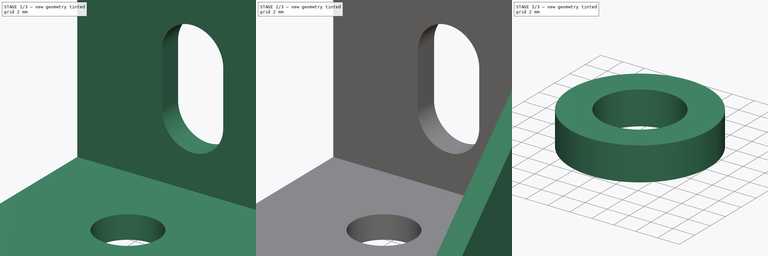
[diagram: build sequence overview — one tinted view per stage of 3, left to right]
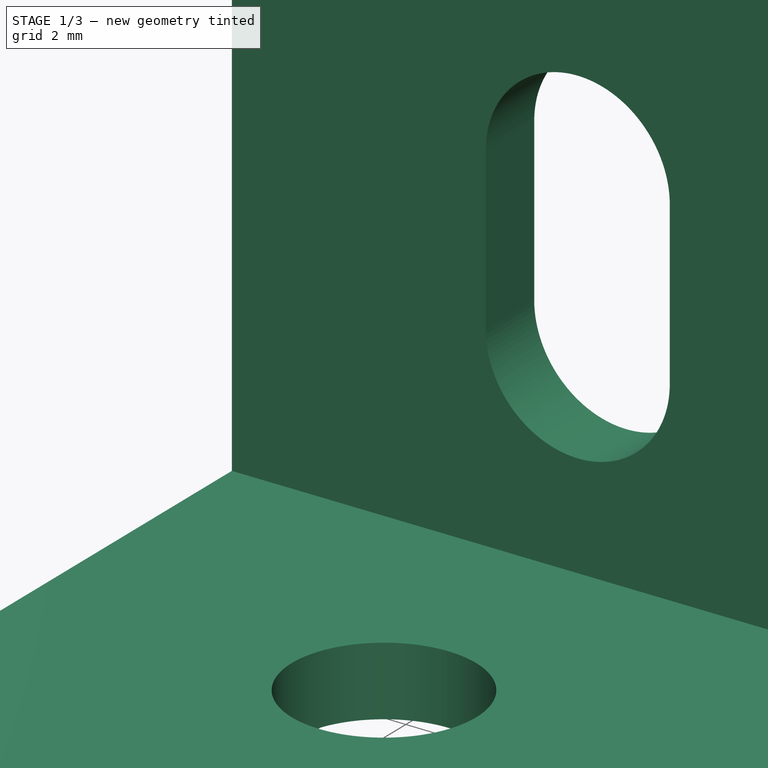
[diagram: stage 1 of 3 — iso view after this stage's code; geometry added in this stage tinted green]
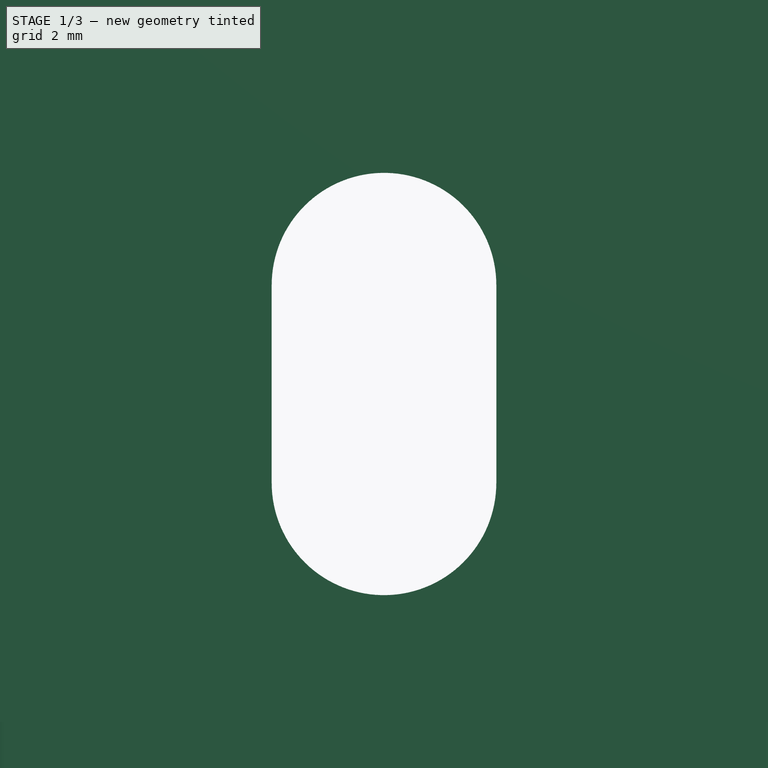
[diagram: stage 1 of 3 — front view after this stage's code; geometry added in this stage tinted green]
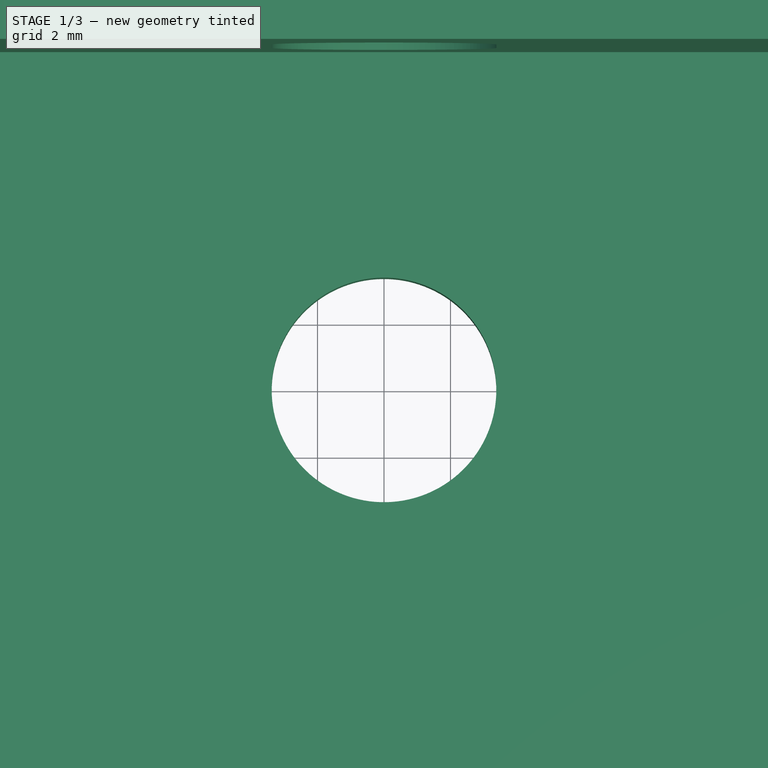
[diagram: stage 1 of 3 — top view after this stage's code; geometry added in this stage tinted green]
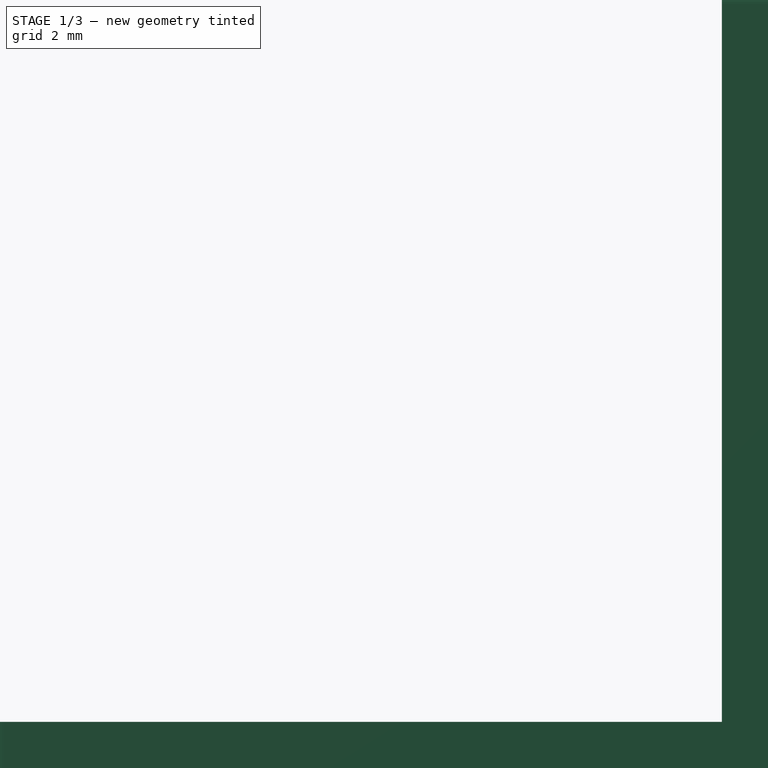
[diagram: stage 1 of 3 — right view after this stage's code; geometry added in this stage tinted green]
FCSTD DOCUMENT  (FreeCAD 0.22R38553 (Git))
Label: 1010-corner-bracket
License: All rights reserved
LicenseURL: http://en.wikipedia.org/wiki/All_rights_reserved
objects: Sketcher::SketchObject×4, PartDesign::Pad×4, PartDesign::Body×2, PartDesign::Mirrored×1, PartDesign::SubShapeBinder×1
note: 25 computed .brp shape members not serialized (recipe doc carries the construction recipe); baked Part::Feature solids carry a one-line shape summary decoded from their .brp

FEATURE [Sketcher::SketchObject] Sketch
  ArcFitTolerance = 1e-06
  AttachmentSupport = -> [XY_Plane]
  FullyConstrained = true
  MakeInternals = false
  MapMode = 5
  expr: Constraints[17] = .Constraints.width
  sketch-geometry (9):
    g0: LineSegment StartX=-12.7 StartY=12.7 StartZ=0 EndX=-12.7 EndY=-11.43 EndZ=0
    g1: LineSegment StartX=-11.43 StartY=-12.7 StartZ=0 EndX=11.43 EndY=-12.7 EndZ=0
    g2: LineSegment StartX=12.7 StartY=-11.43 StartZ=0 EndX=12.7 EndY=12.7 EndZ=0
    g3: LineSegment StartX=12.7 StartY=12.7 StartZ=0 EndX=-12.7 EndY=12.7 EndZ=0
    g4: ArcOfCircle CenterX=-11.43 CenterY=-11.43 CenterZ=0 NormalX=0 NormalY=0 NormalZ=1 AngleXU=0 Radius=1.27 StartAngle=3.14159 EndAngle=4.71239
    g5: GeomPoint [constr] X=-12.7 Y=-12.7 Z=0
    g6: ArcOfCircle CenterX=11.43 CenterY=-11.43 CenterZ=0 NormalX=0 NormalY=0 NormalZ=1 AngleXU=0 Radius=1.27 StartAngle=4.71239 EndAngle=6.28319
    g7: GeomPoint [constr] X=12.7 Y=-12.7 Z=0
    g8: Circle CenterX=0 CenterY=0 CenterZ=0 NormalX=0 NormalY=0 NormalZ=1 AngleXU=0 Radius=3.3782
  constraints (21):
    c: Coincident(g2,g3)
    c: Coincident(g3,g0)
    c: Vertical(g0)
    c: Vertical(g2)
    c: Horizontal(g1)
    c: Horizontal(g3)
    c: PointOnObject(g5,g0)
    c: PointOnObject(g5,g1)
    c: Tangent(g0,g4) = -1.5708
    c: Tangent(g1,g4) = -1.5708
    c: PointOnObject(g7,g1)
    c: PointOnObject(g7,g2)
    c: Tangent(g1,g6) = -1.5708
    c: Tangent(g2,g6) = -1.5708
    c: Equal(g4,g6)
    c: Symmetric(g5,g2,g-1)
    c: DistanceX(g3,g3) = 25.4  'width'
    c: DistanceY(g1,g0) = 25.4
    c: Radius(g4) = 1.27
    c: Coincident(g8,g-1)
    c: Diameter(g8) = 6.7564
FEATURE [PartDesign::Pad] Pad
  Direction = (0,0,1)
  Length = 2.54
  Length2 = 10
  Profile = -> Sketch
  ReferenceAxis = -> Sketch [N_Axis]
  Suppressed = false
  Type = 0
FEATURE [Sketcher::SketchObject] Sketch001
  ArcFitTolerance = 1e-06
  AttachmentOffset = pos=(0,0,-12.7) rot=(0,0,1;0rad)
  AttachmentSupport = -> [XZ_Plane]
  FullyConstrained = true
  MakeInternals = false
  MapMode = 5
  Placement = pos=(0,12.7,-2.8e-15) rot=(1,0,0;1.5708rad)
  expr: .AttachmentOffset.Base.z = -Sketch.Constraints.width / 2
  expr: Constraints[16] = Sketch.Constraints.width
  expr: Constraints[17] = Sketch.Constraints.width
  sketch-geometry (16):
    g0: LineSegment StartX=-12.7 StartY=0 StartZ=0 EndX=12.7 EndY=0 EndZ=0
    g1: LineSegment StartX=12.7 StartY=0 StartZ=0 EndX=12.7 EndY=24.13 EndZ=0
    g2: LineSegment StartX=11.43 StartY=25.4 StartZ=0 EndX=-11.43 EndY=25.4 EndZ=0
    g3: LineSegment StartX=-12.7 StartY=24.13 StartZ=0 EndX=-12.7 EndY=0 EndZ=0
    g4: ArcOfCircle CenterX=-11.43 CenterY=24.13 CenterZ=0 NormalX=0 NormalY=0 NormalZ=1 AngleXU=0 Radius=1.27 StartAngle=1.5708 EndAngle=3.14159
    g5: GeomPoint [constr] X=-12.7 Y=25.4 Z=0
    g6: ArcOfCircle CenterX=11.43 CenterY=24.13 CenterZ=0 NormalX=0 NormalY=0 NormalZ=1 AngleXU=0 Radius=1.27 StartAngle=6e-16 EndAngle=1.5708
    g7: GeomPoint [constr] X=12.7 Y=25.4 Z=0
    g8: LineSegment [constr] StartX=-12.7 StartY=12.7 StartZ=0 EndX=12.7 EndY=12.7 EndZ=0
    g9: LineSegment StartX=-3.3782 StartY=15.6718 StartZ=0 EndX=-3.3782 EndY=9.7282 EndZ=0
    g10: LineSegment StartX=3.3782 StartY=9.7282 StartZ=0 EndX=3.3782 EndY=15.6718 EndZ=0
    g11: ArcOfCircle CenterX=-2e-16 CenterY=15.6718 CenterZ=0 NormalX=0 NormalY=0 NormalZ=1 AngleXU=0 Radius=3.3782 StartAngle=2e-16 EndAngle=3.14159
    g12: ArcOfCircle CenterX=0 CenterY=9.7282 CenterZ=0 NormalX=0 NormalY=0 NormalZ=1 AngleXU=0 Radius=3.3782 StartAngle=3.14159 EndAngle=6.28319
    g13: GeomPoint [constr] X=-1e-16 Y=12.7 Z=0
    g14: GeomPoint [constr] X=0 Y=19.05 Z=0
    g15: GeomPoint [constr] X=0 Y=6.35 Z=0
  constraints (37):
    c: Coincident(g0,g1)
    c: Coincident(g3,g0)
    c: Horizontal(g0)
    c: Horizontal(g2)
    c: Vertical(g1)
    c: Vertical(g3)
    c: PointOnObject(g5,g3)
    c: PointOnObject(g5,g2)
    c: Tangent(g3,g4) = -1.5708
    c: Tangent(g2,g4) = -1.5708
    c: PointOnObject(g7,g2)
    c: PointOnObject(g7,g1)
    c: Tangent(g2,g6) = -1.5708
    c: Tangent(g1,g6) = -1.5708
    c: Equal(g4,g6)
    c: Radius(g4) = 1.27
    c: DistanceX(g3,g1) = 25.4
    c: DistanceY(g0,g2) = 25.4
    c: Symmetric(g0,g0,g-1)
    c: PointOnObject(g8,g3)
    c: Horizontal(g8)
    c: Symmetric(g7,g0,g8)
    c: Vertical(g9)
    c: Vertical(g10)
    c: Tangent(g11,g9) = -1.5708
    c: Tangent(g11,g10) = -1.5708
    c: Tangent(g12,g10) = -1.5708
    c: Tangent(g12,g9) = -1.5708
    c: PointOnObject(g12,g-2)
    c: Diameter(g11) = 6.7564
    c: PointOnObject(g13,g8)
    c: Symmetric(g11,g12,g13)
    c: PointOnObject(g14,g11)
    c: PointOnObject(g15,g12)
    c: PointOnObject(g14,g-2)
    c: PointOnObject(g15,g-2)
    c: DistanceY(g15,g14) = 12.7
FEATURE [PartDesign::Pad] Pad001
  BaseFeature = -> Pad
  Direction = (0,-1,2e-16)
  Length = 2.54
  Length2 = 10
  Profile = -> Sketch001
  ReferenceAxis = -> Sketch001 [N_Axis]
  Suppressed = false
  Type = 0
  expr: Length = Pad.Length
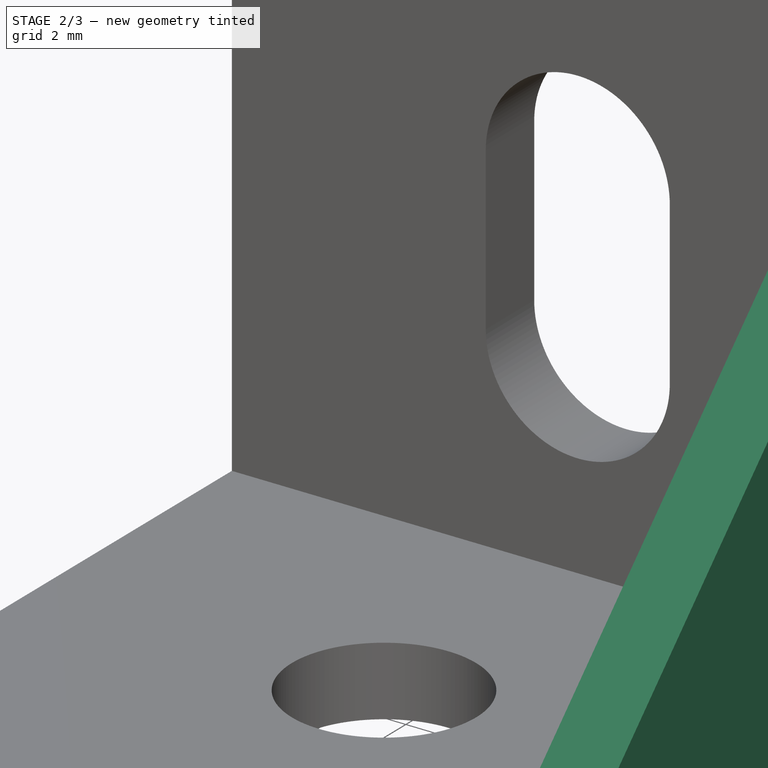
[diagram: stage 2 of 3 — iso view after this stage's code; geometry added in this stage tinted green]
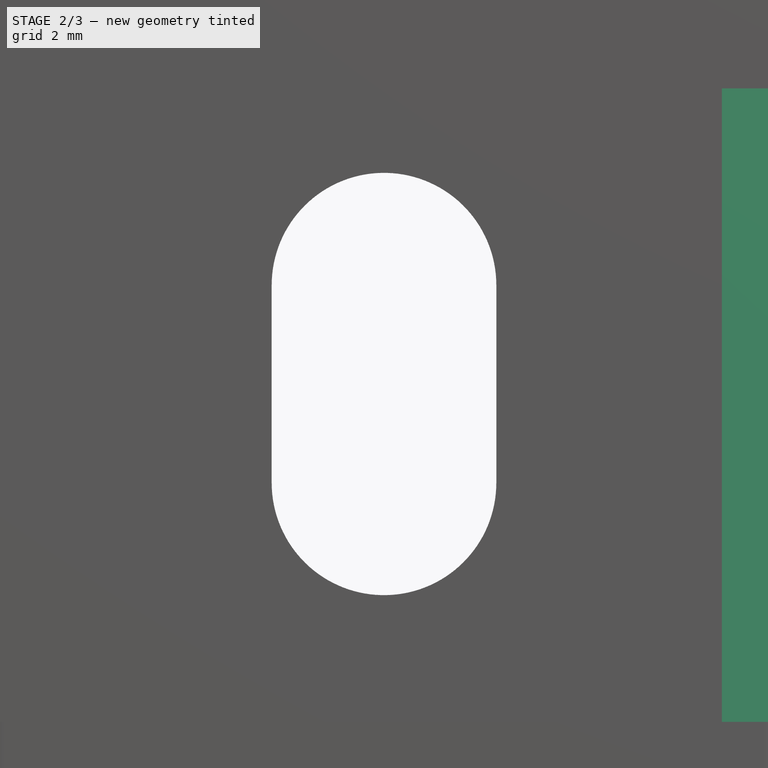
[diagram: stage 2 of 3 — front view after this stage's code; geometry added in this stage tinted green]
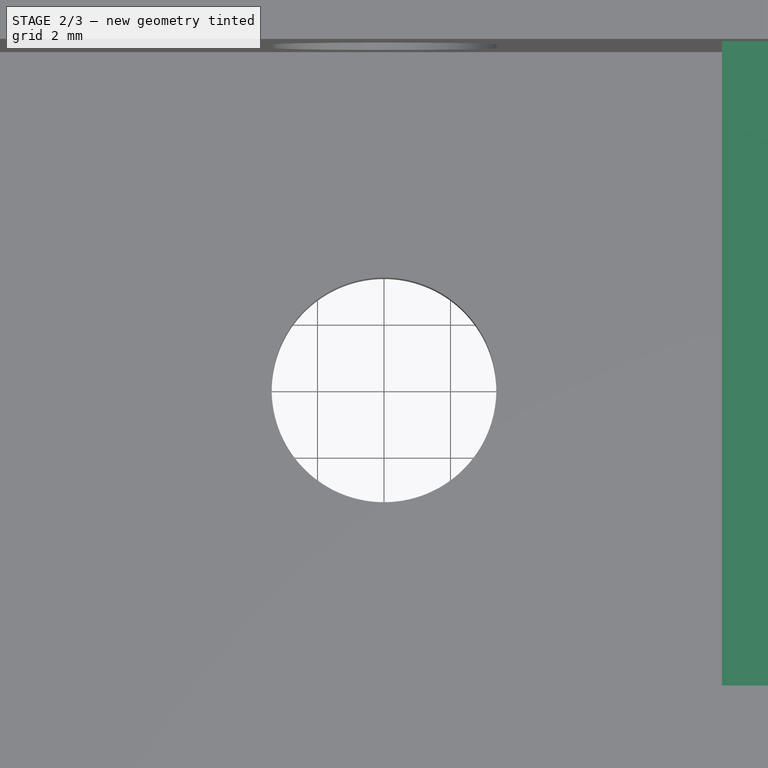
[diagram: stage 2 of 3 — top view after this stage's code; geometry added in this stage tinted green]
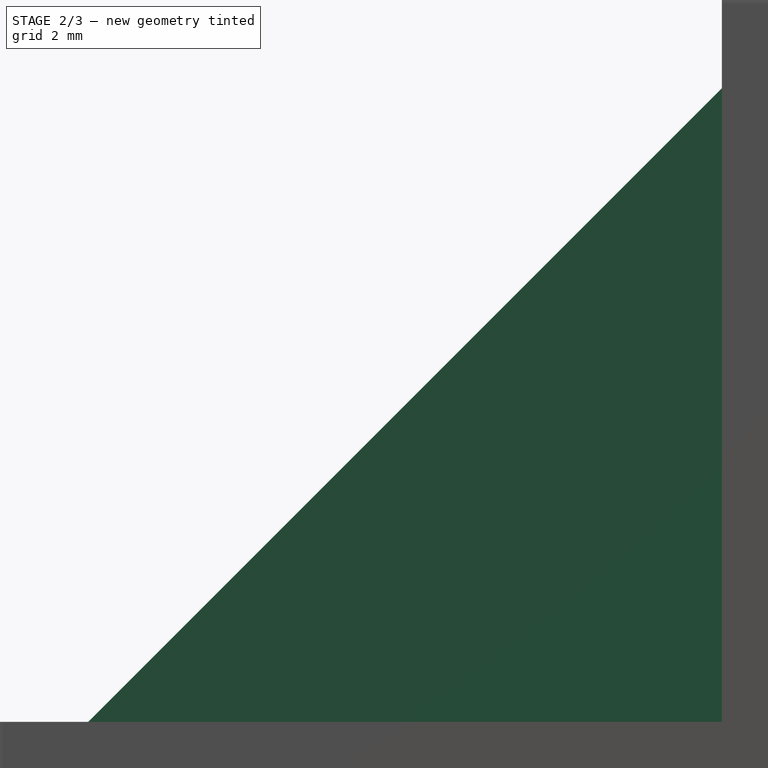
[diagram: stage 2 of 3 — right view after this stage's code; geometry added in this stage tinted green]
FEATURE [Sketcher::SketchObject] Sketch002
  ArcFitTolerance = 1e-06
  AttachmentOffset = pos=(0,0,12.7) rot=(0,0,1;0rad)
  AttachmentSupport = -> [YZ_Plane]
  FullyConstrained = true
  MakeInternals = false
  MapMode = 5
  Placement = pos=(12.7,0,0) rot=(0.57735,0.57735,0.57735;2.0944rad)
  expr: .AttachmentOffset.Base.z = Sketch.Constraints.width / 2
  expr: Constraints[7] = Sketch.Constraints.width / 2
  expr: Constraints[8] = Sketch.Constraints.width - 0.05 "
  sketch-geometry (3):
    g0: LineSegment StartX=12.7 StartY=0 StartZ=0 EndX=12.7 EndY=24.13 EndZ=0
    g1: LineSegment StartX=12.7 StartY=24.13 StartZ=0 EndX=-11.43 EndY=0 EndZ=0
    g2: LineSegment StartX=-11.43 StartY=0 StartZ=0 EndX=12.7 EndY=0 EndZ=0
  constraints (9):
    c: PointOnObject(g0,g-1)
    c: Vertical(g0)
    c: Coincident(g1,g0)
    c: PointOnObject(g1,g-1)
    c: Coincident(g2,g1)
    c: Coincident(g2,g0)
    c: Equal(g2,g0)
    c: DistanceX(g-1,g0) = 12.7
    c: DistanceY(g0,g0) = 24.13
FEATURE [PartDesign::Pad] Pad002
  BaseFeature = -> Pad001
  Direction = (1,0,0)
  Length = 2.54
  Length2 = 10
  Profile = -> Sketch002
  ReferenceAxis = -> Sketch002 [N_Axis]
  Reversed = true
  Suppressed = false
  Type = 0
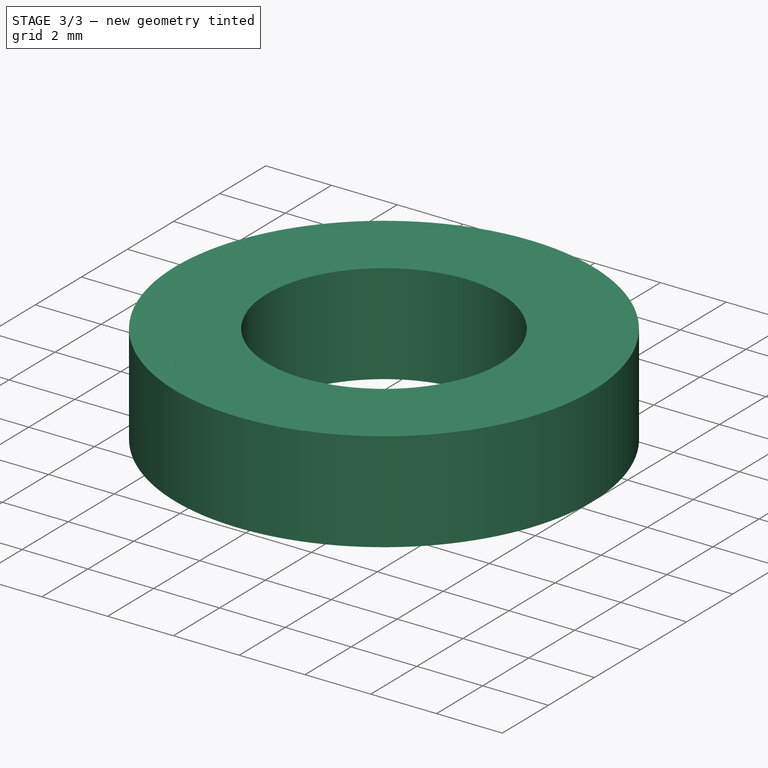
[diagram: stage 3 of 3 — iso view after this stage's code; geometry added in this stage tinted green]
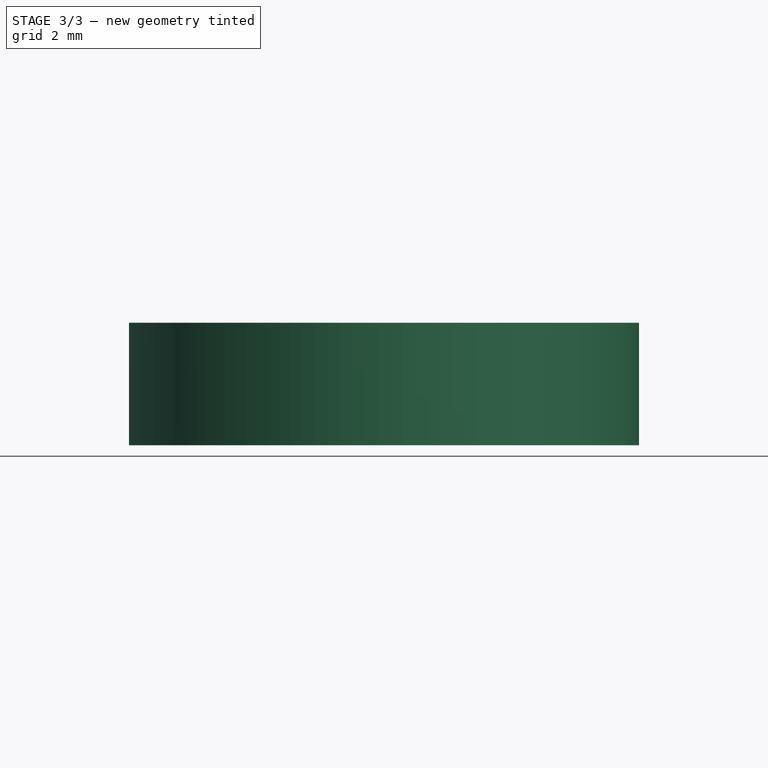
[diagram: stage 3 of 3 — front view after this stage's code; geometry added in this stage tinted green]
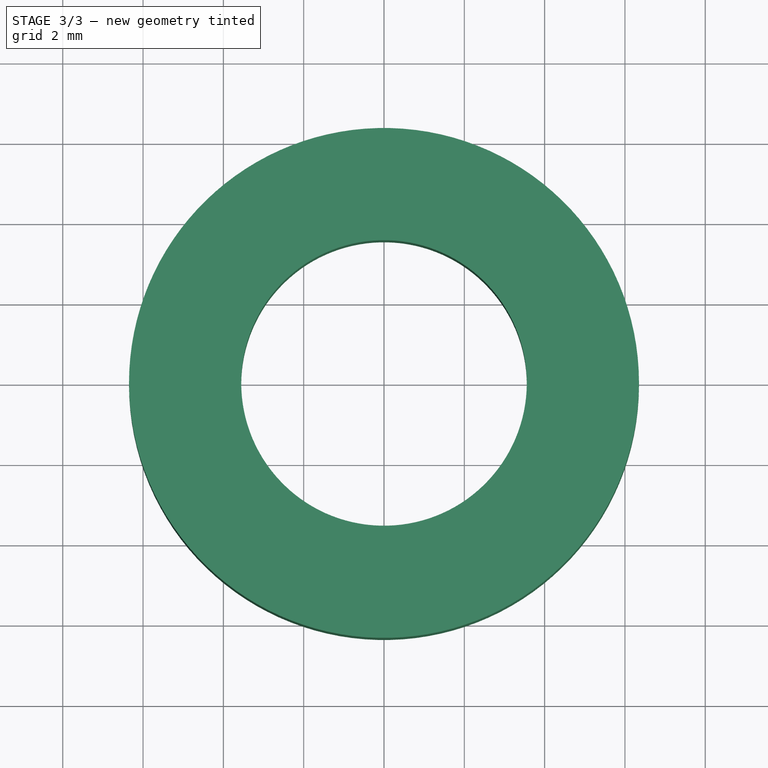
[diagram: stage 3 of 3 — top view after this stage's code; geometry added in this stage tinted green]
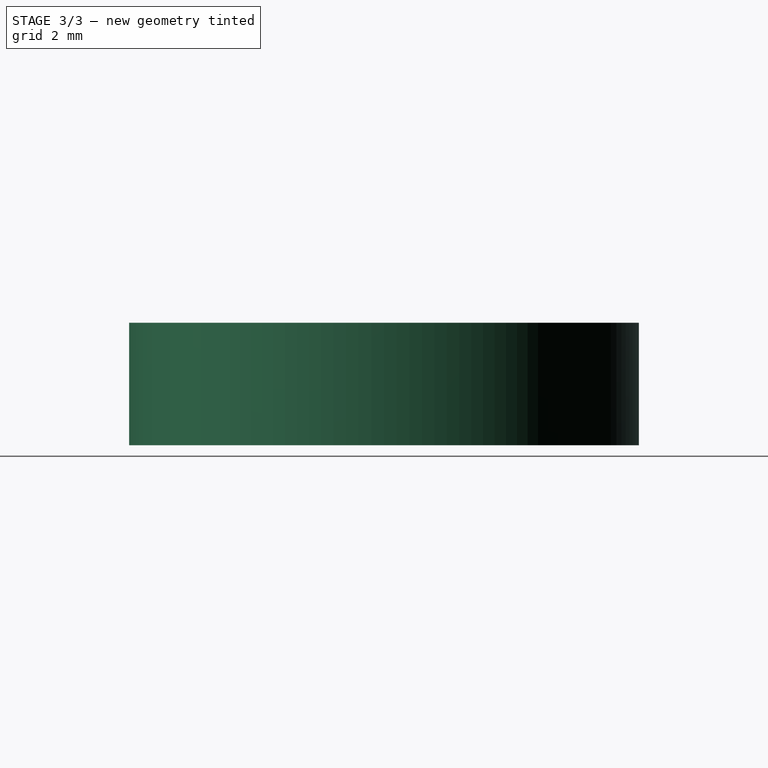
[diagram: stage 3 of 3 — right view after this stage's code; geometry added in this stage tinted green]
FEATURE [PartDesign::Mirrored] Mirrored
  BaseFeature = -> Pad002
  MirrorPlane = -> YZ_Plane
  Originals = -> [Pad002]
  Suppressed = false
  TransformMode = 0
FEATURE [PartDesign::Body] Body  label="bracket"
  AllowCompound = false
  Group = -> [Sketch,Pad,Sketch001,Pad001,Sketch002,Pad002,Mirrored]
  Origin = -> Origin
  Tip = -> Mirrored
FEATURE [PartDesign::SubShapeBinder] Binder
  BindCopyOnChange = 0
  BindMode = 0
  ClaimChildren = false
  Context = -> Body001 [Binder.]
  Fuse = false
  MakeFace = true
  OffsetFill = false
  OffsetIntersection = false
  OffsetJoinType = 0
  OffsetOpenResult = false
  PartialLoad = false
  Relative = true
  Support = -> [Body]
  _Version = 2
FEATURE [Sketcher::SketchObject] Sketch003
  ArcFitTolerance = 1e-06
  AttachmentOffset = pos=(0,0,2.54) rot=(0,0,1;0rad)
  AttachmentSupport = -> [XY_Plane001]
  ExternalGeometry = -> [Binder]
  FullyConstrained = true
  MakeInternals = false
  MapMode = 5
  Placement = pos=(0,0,2.54) rot=(0,0,1;0rad)
  sketch-geometry (3):
    g0: Circle CenterX=0 CenterY=0 CenterZ=0 NormalX=0 NormalY=0 NormalZ=1 AngleXU=0 Radius=3.556
    g1: Circle CenterX=0 CenterY=0 CenterZ=0 NormalX=0 NormalY=0 NormalZ=1 AngleXU=0 Radius=6.35
    g2: LineSegment [constr] StartX=3.3782 StartY=0 StartZ=0 EndX=3.556 EndY=0 EndZ=0
  constraints (9):
    c: Coincident(g0,g-1)
    c: Coincident(g1,g0)
    c: Diameter(g1) = 12.7
    c: PointOnObject(g2,g-1)
    c: PointOnObject(g2,g0)
    c: PointOnObject(g2,g-1)
    c: PointOnObject(g2,g-3)
    c: Diameter(g0) = 7.112
    c: Distance(g2,g2) = 0.1778
FEATURE [PartDesign::Pad] Pad003
  Direction = (0,0,1)
  Length = 3.048
  Length2 = 10
  Profile = -> Sketch003
  ReferenceAxis = -> Sketch003 [N_Axis]
  Suppressed = false
  Type = 0
FEATURE [PartDesign::Body] Body001  label="spacer"
  AllowCompound = false
  Group = -> [Sketch003,Binder,Pad003]
  Origin = -> Origin001
  Tip = -> Pad003
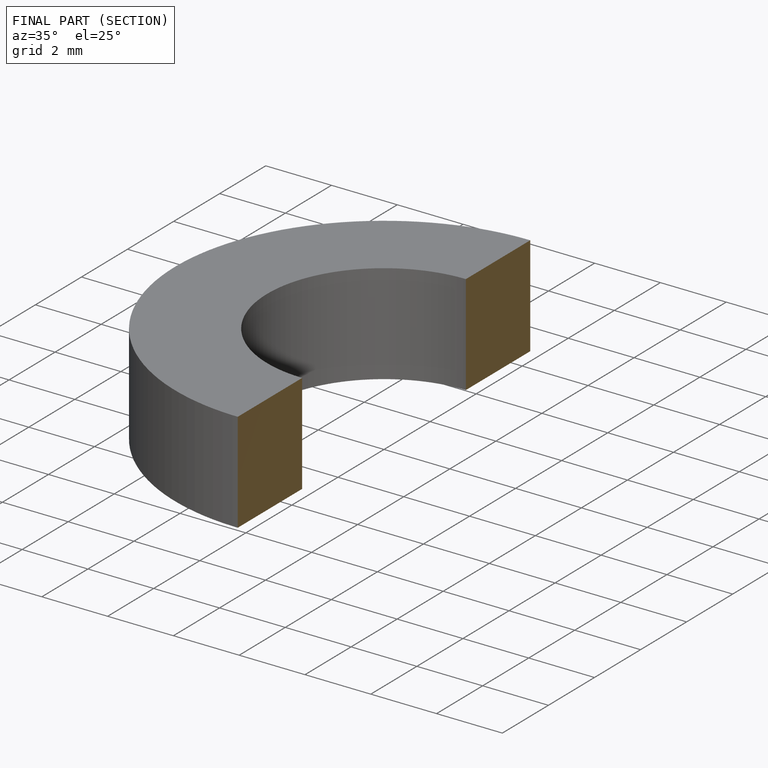
[diagram: finished part — half-section view (interior)]
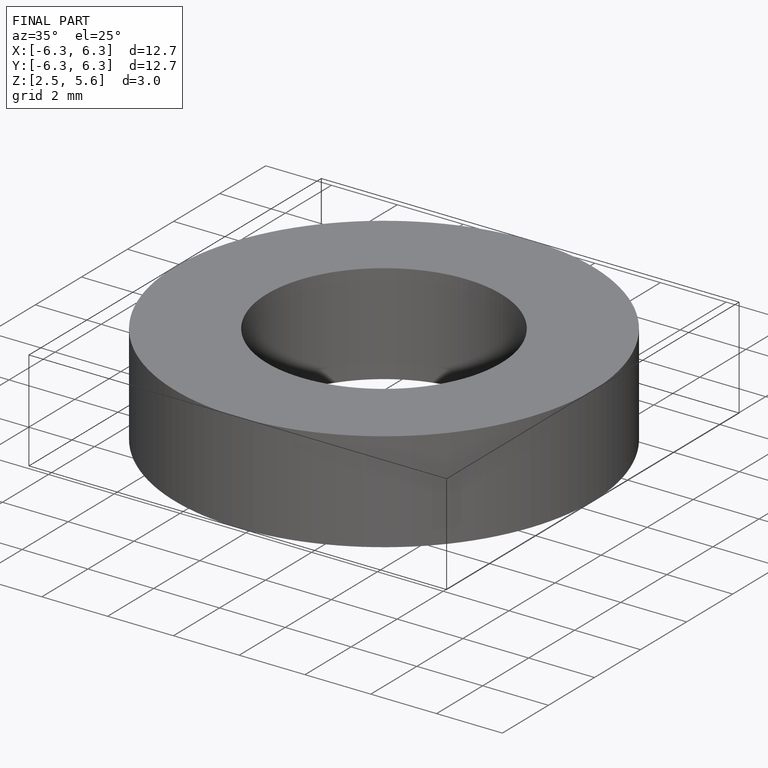
[diagram: finished part — iso view with bounding-box wireframe]
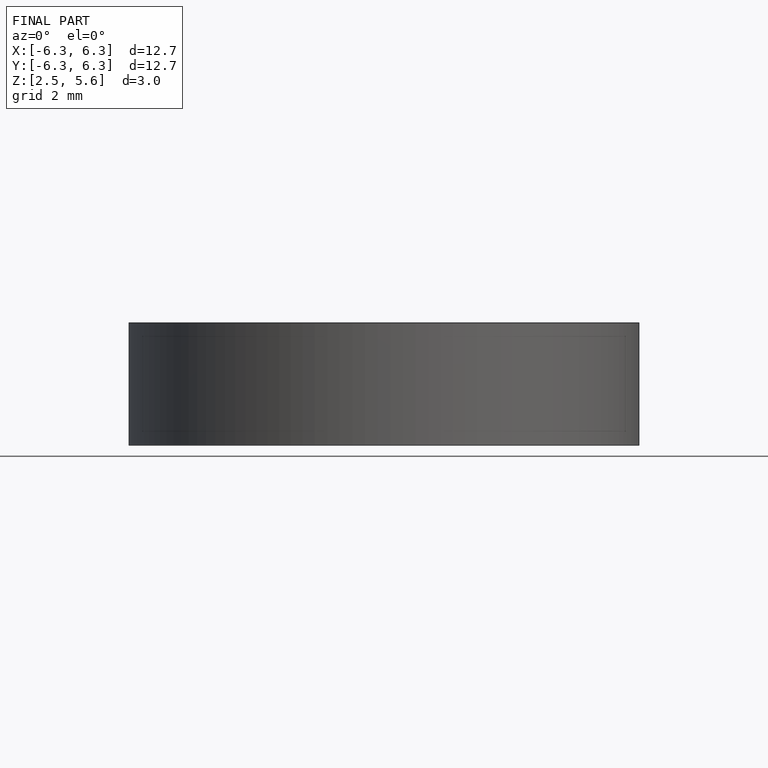
[diagram: finished part — front view with bounding-box wireframe]
